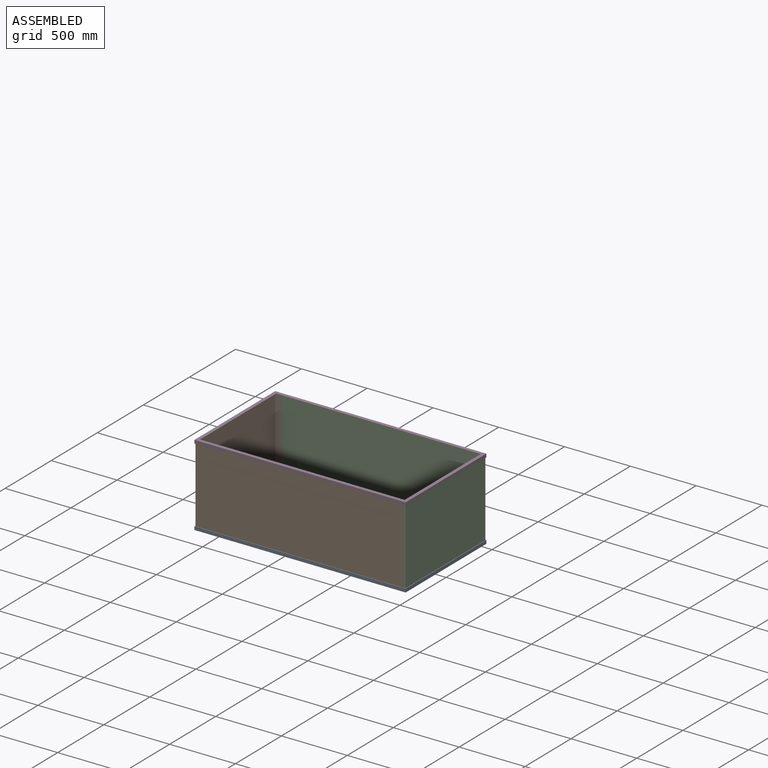
[diagram: assembled view]
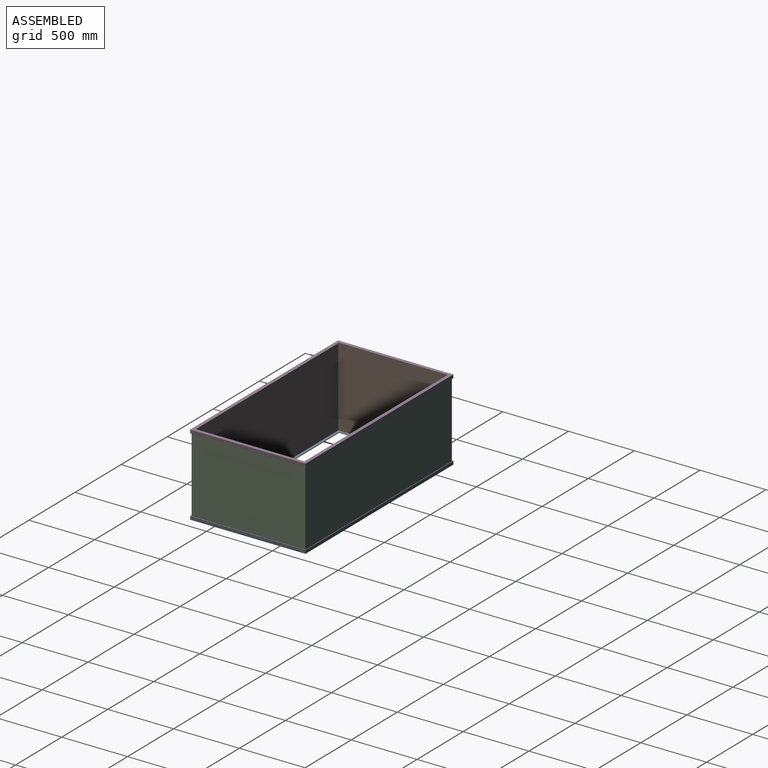
[diagram: assembled view, second angle]
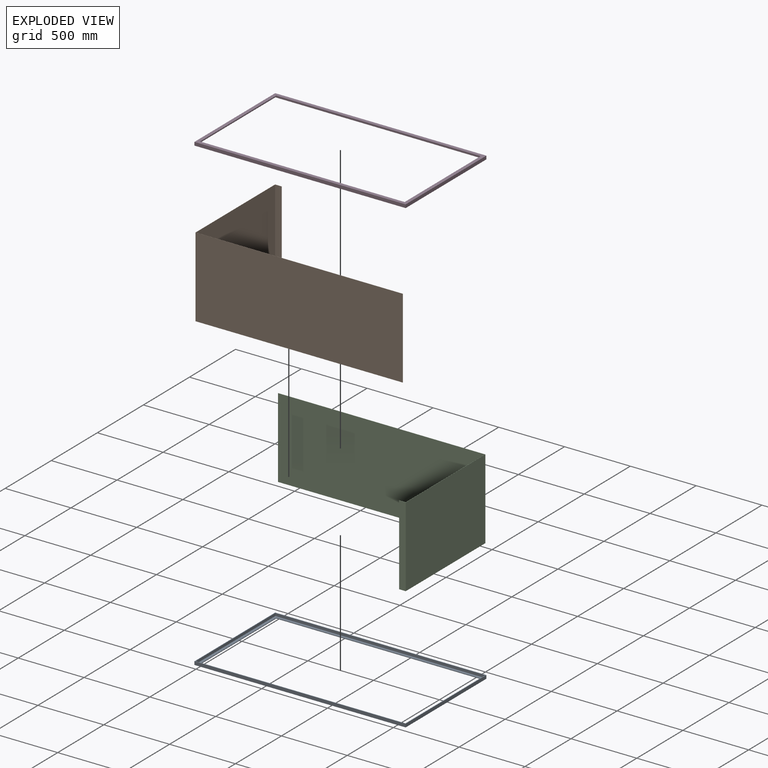
[diagram: exploded view]
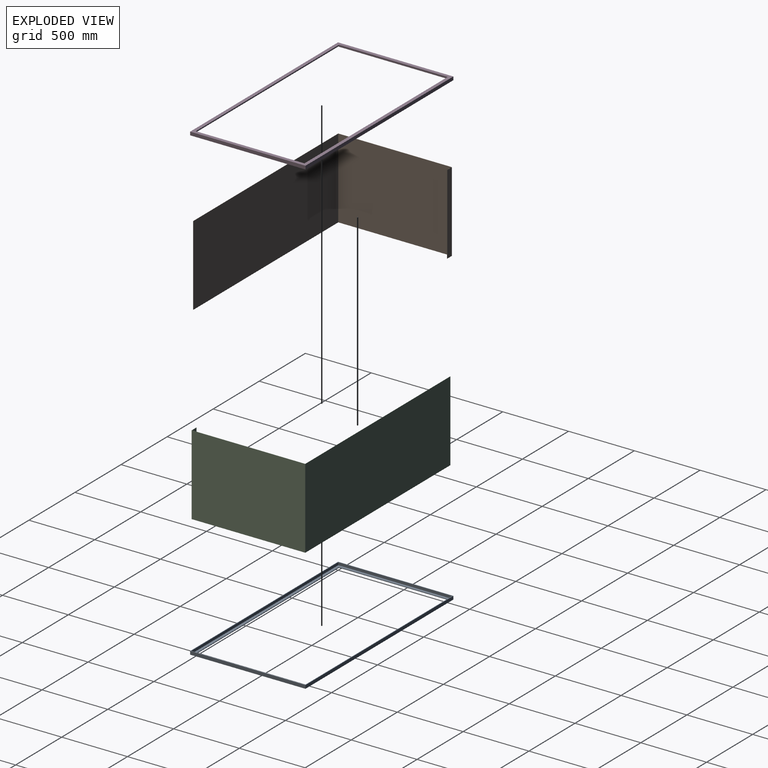
[diagram: exploded view, second angle]
ASSEMBLY  parts=4 mates=3
PART A: 15 faces, bbox 1605x876.3x25.4 mm
  f0: plane 825.5x4.76mm, normal (-1,0,0), area 3931.4mm2, adj f3,f6,f10,f14
  f1: plane 876.3x25.4mm, normal (1,0,0), area 22258mm2, adj f4,f7,f10,f12
  f2: plane 866.78x20.64mm, normal (-1,0,0), area 17888.1mm2, adj f5,f8,f12,f14
  f3: plane 1554.16x4.76mm, normal (0,-1,0), area 7401.7mm2, adj f0,f9,f10,f14
  f4: plane 1604.96x25.4mm, normal (0,1,0), area 40766mm2, adj f1,f10,f11,f12
  f5: plane 1595.44x20.64mm, normal (0,-1,0), area 32925.8mm2, adj f2,f12,f13,f14
  f6: plane 1554.16x4.76mm, normal (0,1,0), area 7401.7mm2, adj f0,f9,f10,f14
  f7: plane 1604.96x25.4mm, normal (0,-1,0), area 40766mm2, adj f1,f10,f11,f12
  f8: plane 1595.44x20.64mm, normal (0,1,0), area 32925.8mm2, adj f2,f12,f13,f14
  f9: plane 825.5x4.76mm, normal (1,0,0), area 3931.4mm2, adj f3,f6,f10,f14
  f10: plane 1604.96x876.3mm, normal (0,0,-1), area 123467.5mm2, adj f0,f1,f3,f4,f6,f7,f9,f11
  f11: plane 876.3x25.4mm, normal (-1,0,0), area 22258mm2, adj f4,f7,f10,f12
  f12: plane 1604.96x876.3mm, normal (0,0,1), area 23543.3mm2, adj f1,f2,f4,f5,f7,f8,f11,f13
  f13: plane 866.78x20.64mm, normal (1,0,0), area 17888.1mm2, adj f5,f8,f12,f14
  f14: plane 1595.44x866.78mm, normal (0,0,1), area 99924.2mm2, adj f0,f2,f3,f5,f6,f8,f9,f13
PART B: 10 faces, bbox 1574.8x863.6x609.6 mm
  f0: plane 863.6x609.6mm, normal (-1,0,0), area 526450.6mm2, adj f1,f7,f8,f9
  f1: plane 1574.8x609.6mm, normal (0,-1,0), area 959998.1mm2, adj f0,f2,f8,f9
  f2: plane 609.6x1.27mm, normal (1,-0.03,0), area 774.2mm2, adj f1,f3,f8,f9
  f3: plane 1573.56x609.6mm, normal (0,1,0), area 959244.7mm2, adj f2,f4,f8,f9
  f4: plane 861.06x609.6mm, normal (1,0,0), area 524902.5mm2, adj f3,f5,f8,f9
  f5: plane 609.6x49.53mm, normal (0,-1,0), area 30193.5mm2, adj f4,f6,f8,f9
  f6: plane 609.6x1.27mm, normal (1,0,0), area 774.2mm2, adj f5,f7,f8,f9
  f7: plane 609.6x50.8mm, normal (0,1,0), area 30967.7mm2, adj f0,f6,f8,f9
  f8: plane 1574.83x863.6mm, normal (0,0,1), area 3157.4mm2, adj f0,f1,f2,f3,f4,f5,f6,f7
  f9: plane 1574.83x863.6mm, normal (0,0,-1), area 3157.4mm2, adj f0,f1,f2,f3,f4,f5,f6,f7
PART C: same geometry as B
PART D: same geometry as A
PLACE A t=(0.38,0.76,-86.86)mm
PLACE B t=(-1.2,-0.83,-86.86)mm fixed
PLACE C rot(axis=(0,0,1),180deg) t=(1591.69,865.95,-86.86)mm
PLACE D rot(axis=(1,0,0),180deg) t=(0.38,864.36,522.74)mm
MATE fastened C.f9 <-> A.f14  axis (0,0,1) through (1592.96,865.95,-86.86)mm
MATE fastened D.f5 <-> B.f1  axis (0,1,0) through (-2.47,-0.83,522.74)mm
MATE fastened A.f14 <-> B.f9  axis (0,0,1) through (-2.47,-0.83,-86.86)mm
